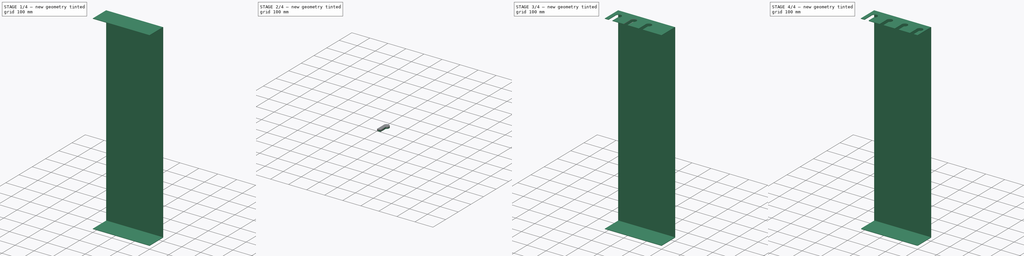
[diagram: build sequence overview — one tinted view per stage of 4, left to right]
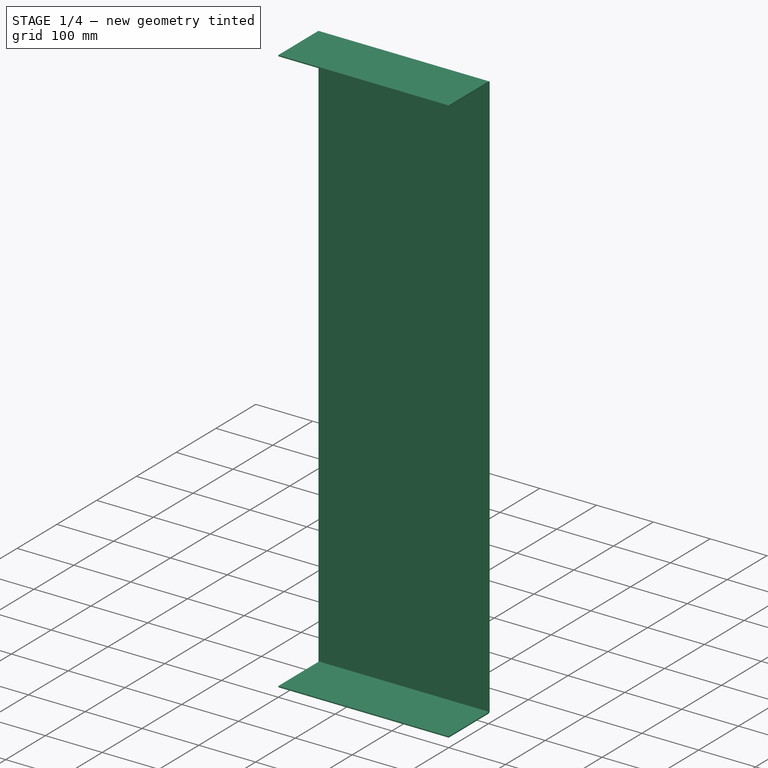
[diagram: stage 1 of 4 — iso view after this stage's code; geometry added in this stage tinted green]
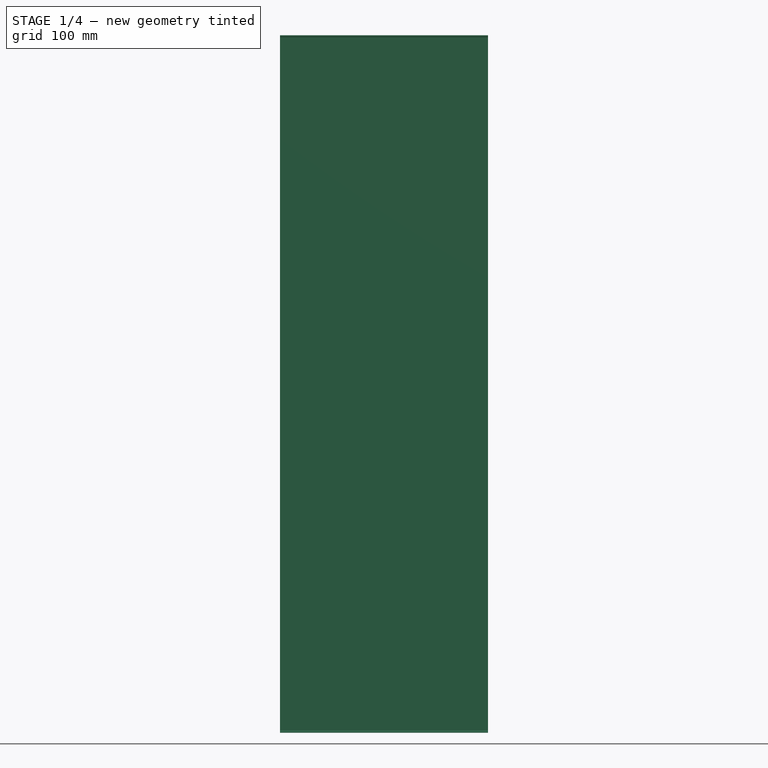
[diagram: stage 1 of 4 — front view after this stage's code; geometry added in this stage tinted green]
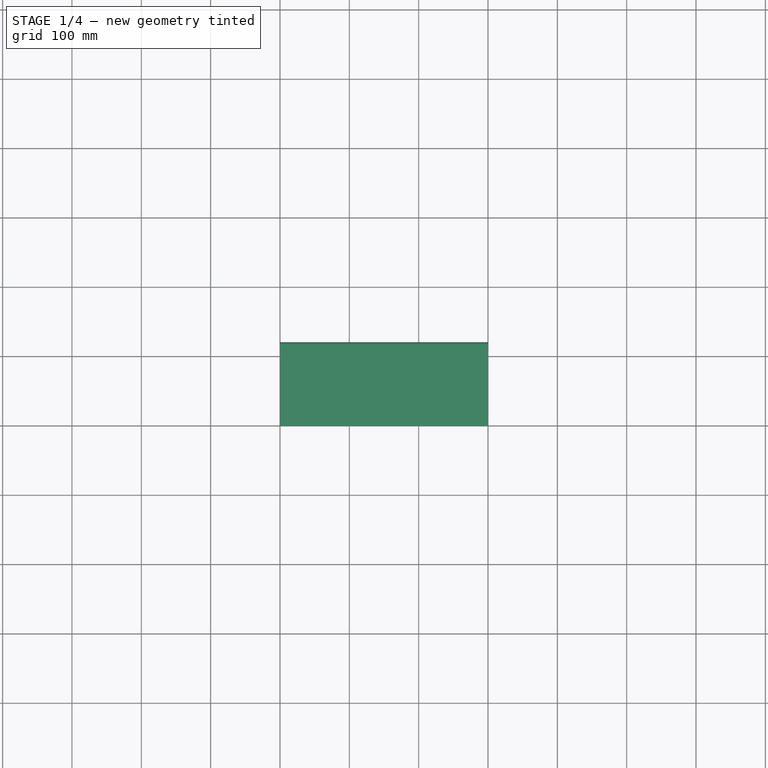
[diagram: stage 1 of 4 — top view after this stage's code; geometry added in this stage tinted green]
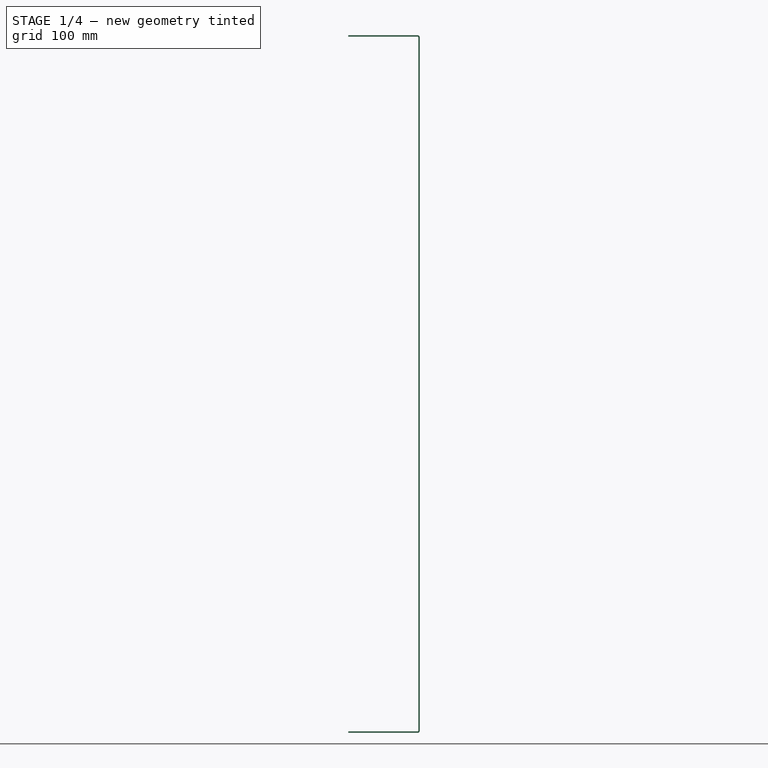
[diagram: stage 1 of 4 — right view after this stage's code; geometry added in this stage tinted green]
FCSTD DOCUMENT  (FreeCAD 0.17R11624 (Git))
Label: insert_stand
License: All rights reserved
LicenseURL: http://en.wikipedia.org/wiki/All_rights_reserved
objects: Sketcher::SketchObject×4, Part::Extrusion×4, Part::Cut×4, Part::FeaturePython×2, Part::Box×1, Part::Fillet×1
note: 16 computed .brp shape members not serialized (recipe doc carries the construction recipe); baked Part::Feature solids carry a one-line shape summary decoded from their .brp

FEATURE [Part::Box] Box  label="Cube"
  AttacherType = Attacher::AttachEngine3D
  Height = 2
  Length = 300
  Width = 100
FEATURE [Part::FeaturePython] Bend  # WARN: FeaturePython — macro-defined, semantics opaque (R4)
  angle = 90
  baseObject = -> Box [Face4]
  gap1 = 0
  gap2 = 0
  invert = false
  length = 1000
  radius = 1
  reliefd = 1
  reliefw = 0.5
FEATURE [Part::FeaturePython] Bend001  # WARN: FeaturePython — macro-defined, semantics opaque (R4)
  angle = 90
  baseObject = -> Bend [Face1]
  gap1 = 0
  gap2 = 0
  invert = false
  length = 100
  radius = 1
  reliefd = 1
  reliefw = 0.5
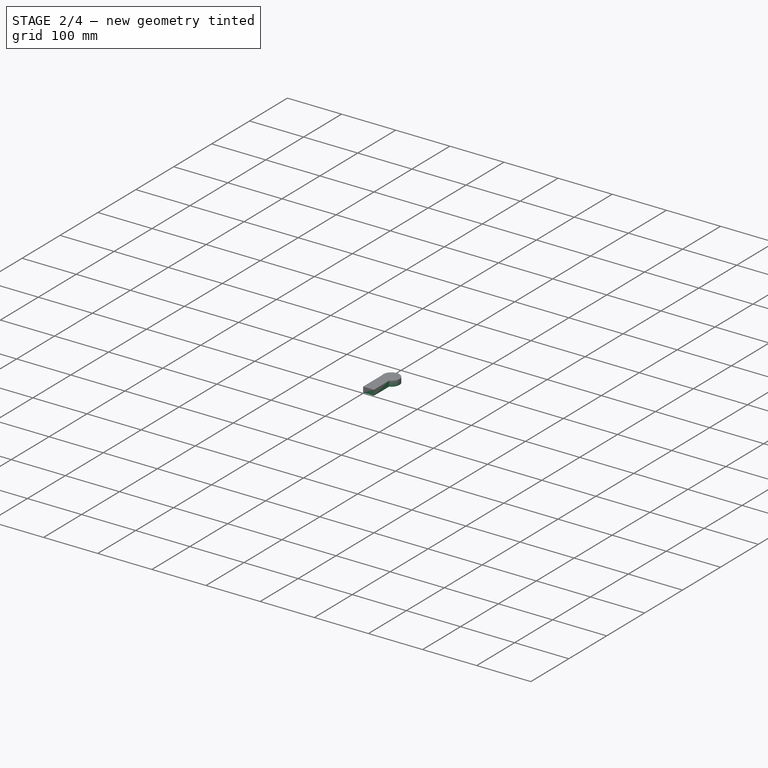
[diagram: stage 2 of 4 — iso view after this stage's code; geometry added in this stage tinted green]
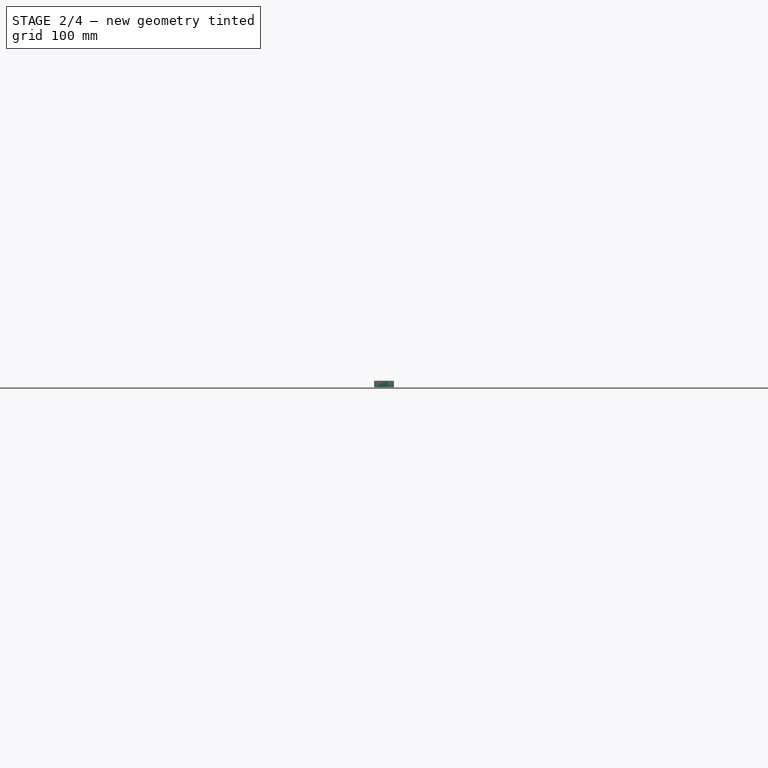
[diagram: stage 2 of 4 — front view after this stage's code; geometry added in this stage tinted green]
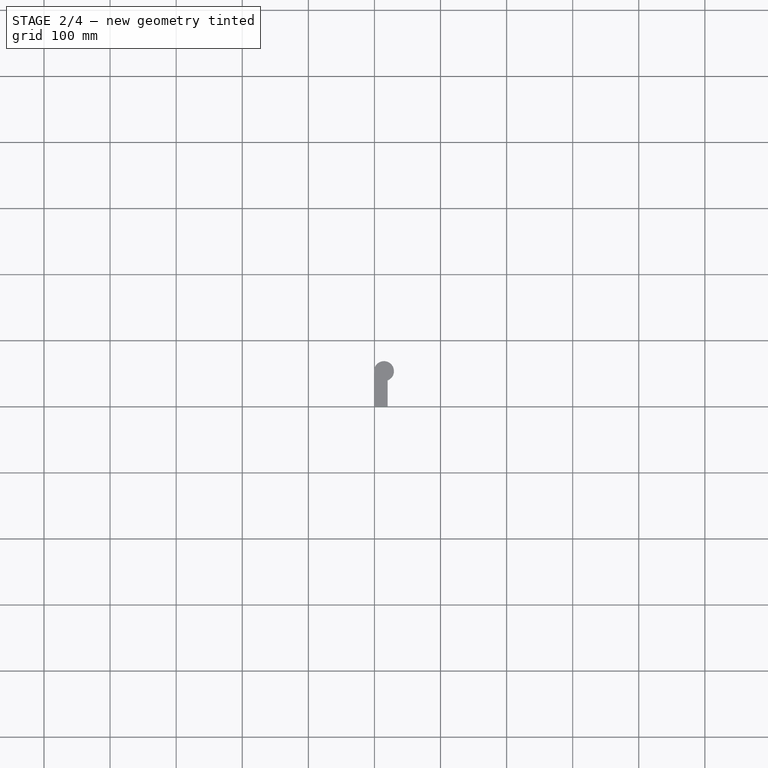
[diagram: stage 2 of 4 — top view after this stage's code; geometry added in this stage tinted green]
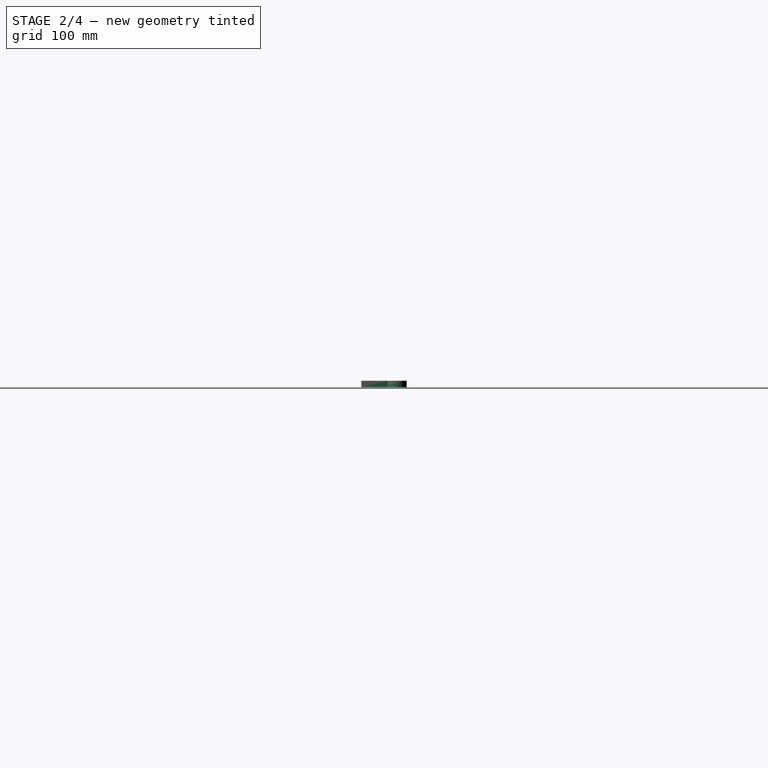
[diagram: stage 2 of 4 — right view after this stage's code; geometry added in this stage tinted green]
FEATURE [Sketcher::SketchObject] Sketch
  MapMode = 5
  Placement = pos=(0,0,1006) rot=(0,0,1;0rad)
  Support = -> [Bend001]
  sketch-geometry (4):
    g0: LineSegment StartX=20 StartY=0 StartZ=0 EndX=20 EndY=50 EndZ=0
    g1: LineSegment StartX=40 StartY=0 StartZ=0 EndX=40 EndY=40 EndZ=0
    g2: ArcOfCircle CenterX=34.4721 CenterY=53.9443 CenterZ=0 NormalX=0 NormalY=0 NormalZ=1 Radius=15 StartAngle=5.08981 EndAngle=9.69086
    g3: LineSegment StartX=20 StartY=0 StartZ=0 EndX=40 EndY=0 EndZ=0
  constraints (13):
    c: Vertical(g0)
    c: Vertical(g1)
    c: DistanceY(g-1,g0) = 0
    c: DistanceX(g-1,g0) = 20
    c: DistanceX(g0,g1) = 20
    c: DistanceY(g0,g0) = 50
    c: DistanceY(g-1,g1) = 0
    c: Coincident(g2,g0)
    c: Coincident(g2,g1)
    c: Radius(g2) = 15
    c: Coincident(g3,g0)
    c: Coincident(g3,g1)
    c: DistanceY(g1,g1) = 40
FEATURE [Part::Extrusion] Extrude001
  Base = -> Sketch
  Dir = (0,0,1)
  DirMode = 2
  FaceMakerClass = Part::FaceMakerBullseye
  LengthFwd = 10
  LengthRev = 0
  Reversed = true
  Solid = true
  Symmetric = false
FEATURE [Part::Cut] Cut
  Base = -> Bend001
  Tool = -> Extrude001
FEATURE [Sketcher::SketchObject] Sketch001
  MapMode = 5
  Placement = pos=(0,0,1006) rot=(0,0,1;0rad)
  Support = -> [Cut]
  sketch-geometry (4):
    g0: LineSegment StartX=100 StartY=0 StartZ=0 EndX=100 EndY=50 EndZ=0
    g1: LineSegment StartX=120 StartY=0 StartZ=0 EndX=120 EndY=40 EndZ=0
    g2: ArcOfCircle CenterX=114.472 CenterY=53.9443 CenterZ=0 NormalX=0 NormalY=0 NormalZ=1 Radius=15 StartAngle=5.08981 EndAngle=9.69086
    g3: LineSegment StartX=100 StartY=0 StartZ=0 EndX=120 EndY=0 EndZ=0
  constraints (13):
    c: Vertical(g0)
    c: Vertical(g1)
    c: DistanceY(g-1,g0) = 0
    c: DistanceY(g-1,g1) = 0
    c: DistanceX(g0,g1) = 20
    c: DistanceX(g-1,g0) = 100
    c: DistanceY(g0,g0) = 50
    c: DistanceY(g1,g1) = 40
    c: Coincident(g2,g0)
    c: Coincident(g2,g1)
    c: Radius(g2) = 15
    c: Coincident(g3,g0)
    c: Coincident(g3,g1)
FEATURE [Part::Extrusion] Extrude
  Base = -> Sketch001
  Dir = (0,0,1)
  DirMode = 2
  FaceMakerClass = Part::FaceMakerBullseye
  LengthFwd = 10
  LengthRev = 0
  Reversed = true
  Solid = true
  Symmetric = false
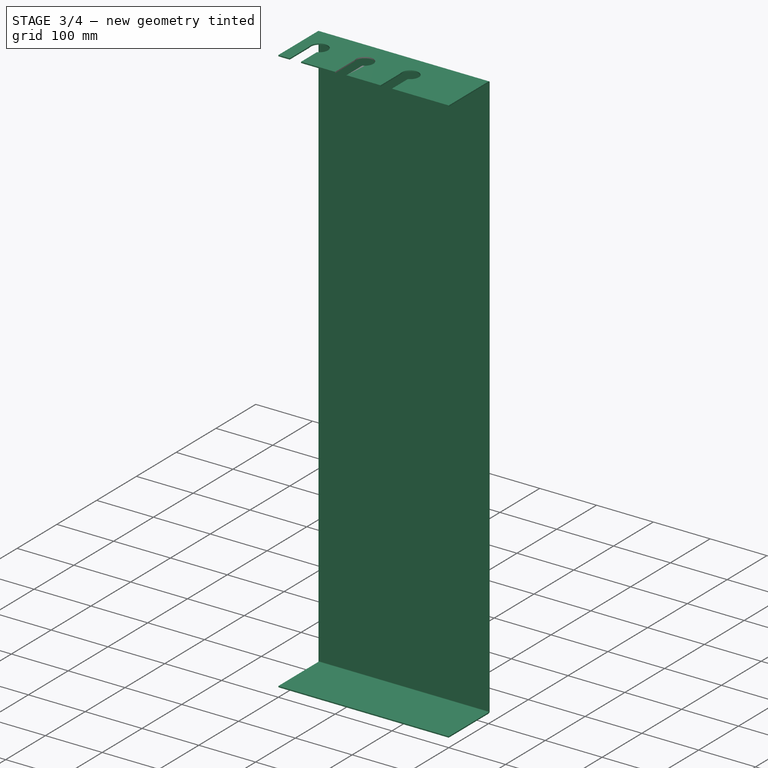
[diagram: stage 3 of 4 — iso view after this stage's code; geometry added in this stage tinted green]
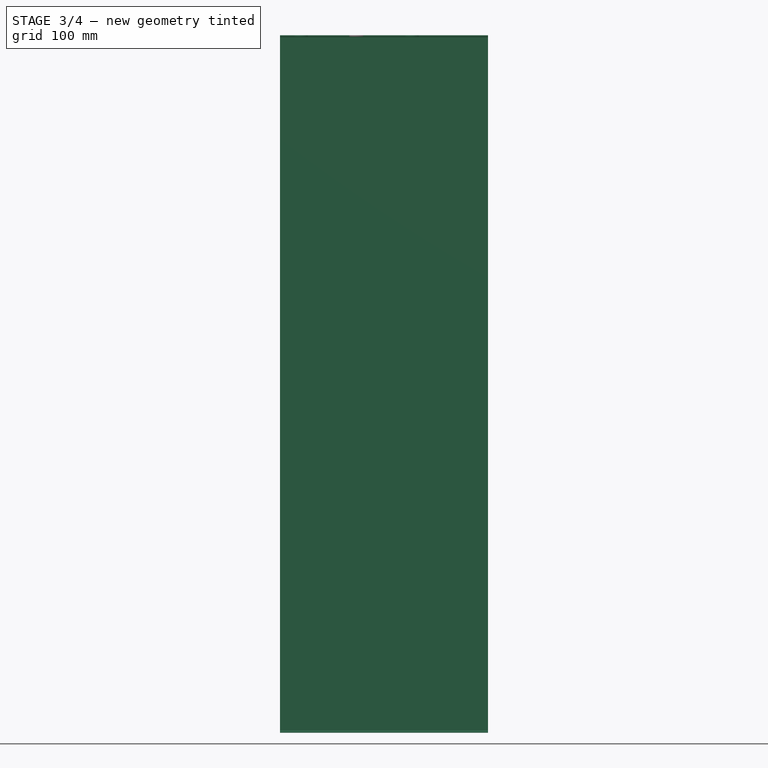
[diagram: stage 3 of 4 — front view after this stage's code; geometry added in this stage tinted green]
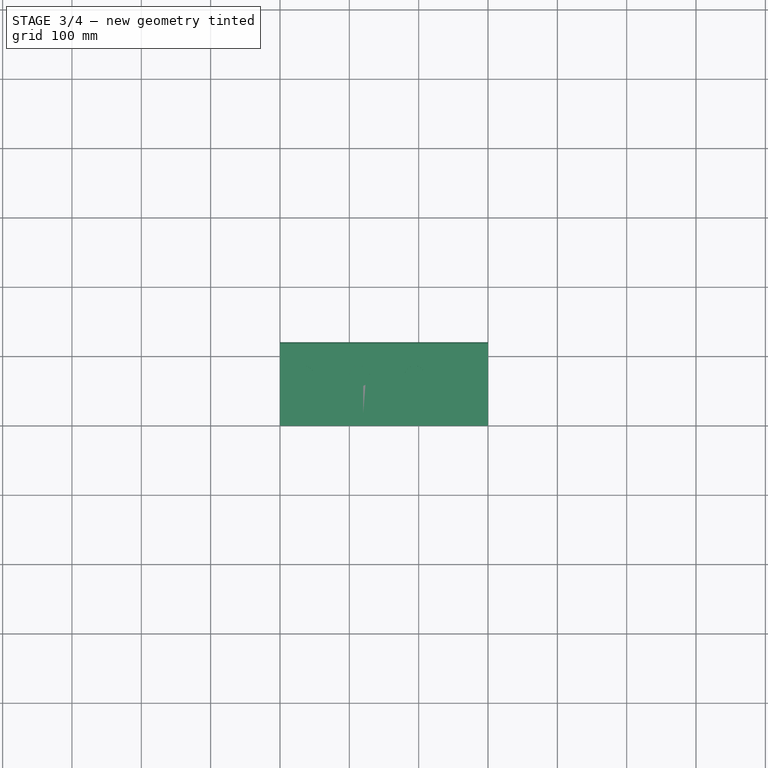
[diagram: stage 3 of 4 — top view after this stage's code; geometry added in this stage tinted green]
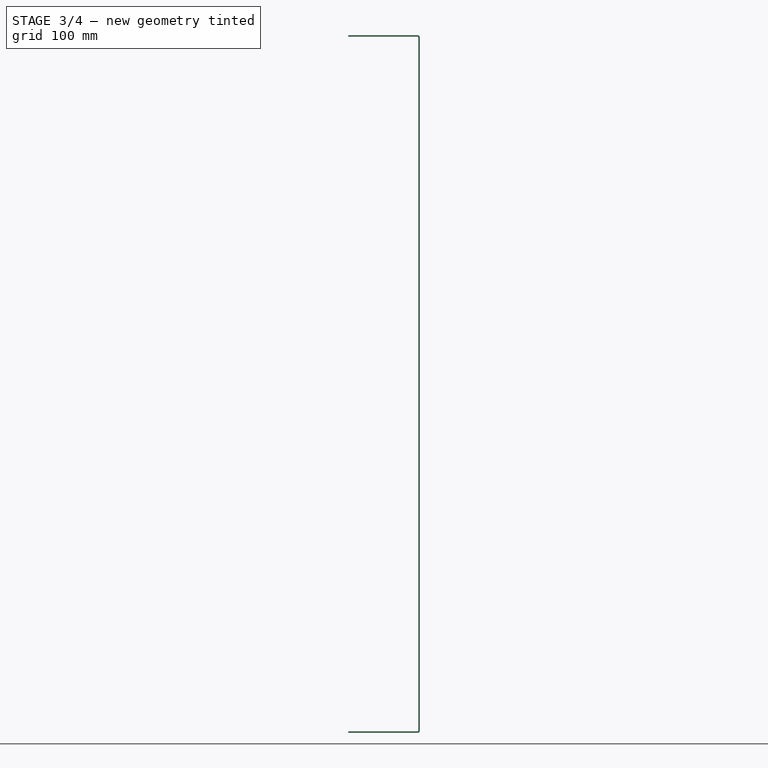
[diagram: stage 3 of 4 — right view after this stage's code; geometry added in this stage tinted green]
FEATURE [Part::Cut] Cut001
  Base = -> Cut
  Tool = -> Extrude
FEATURE [Sketcher::SketchObject] Sketch002
  MapMode = 5
  Placement = pos=(0,0,1006) rot=(0,0,1;0rad)
  Support = -> [Cut001]
  sketch-geometry (4):
    g0: LineSegment StartX=180 StartY=0 StartZ=0 EndX=180 EndY=50 EndZ=0
    g1: LineSegment StartX=200 StartY=0 StartZ=0 EndX=200 EndY=40 EndZ=0
    g2: LineSegment StartX=180 StartY=0 StartZ=0 EndX=200 EndY=0 EndZ=0
    g3: ArcOfCircle CenterX=194.472 CenterY=53.9443 CenterZ=0 NormalX=0 NormalY=0 NormalZ=1 Radius=15 StartAngle=5.08981 EndAngle=9.69086
  constraints (13):
    c: Vertical(g1)
    c: Coincident(g2,g0)
    c: Coincident(g2,g1)
    c: Horizontal(g2)
    c: Vertical(g0)
    c: DistanceY(g0,g-1) = 0
    c: DistanceY(g0,g0) = 50
    c: DistanceY(g1,g1) = 40
    c: Coincident(g3,g0)
    c: Coincident(g3,g1)
    c: Radius(g3) = 15
    c: DistanceX(g-1,g0) = 180
    c: DistanceX(g0,g1) = 20
FEATURE [Part::Extrusion] Extrude002
  Base = -> Sketch002
  Dir = (0,0,1)
  DirMode = 2
  FaceMakerClass = Part::FaceMakerBullseye
  LengthFwd = 10
  LengthRev = 0
  Reversed = true
  Solid = true
  Symmetric = false
FEATURE [Part::Cut] Cut002
  Base = -> Cut001
  Tool = -> Extrude002
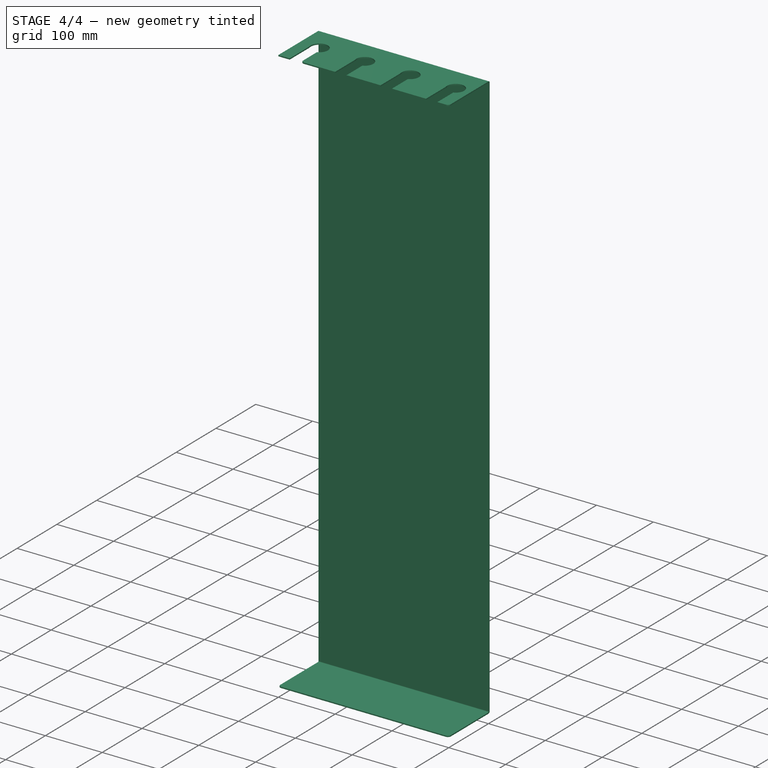
[diagram: stage 4 of 4 — iso view after this stage's code; geometry added in this stage tinted green]
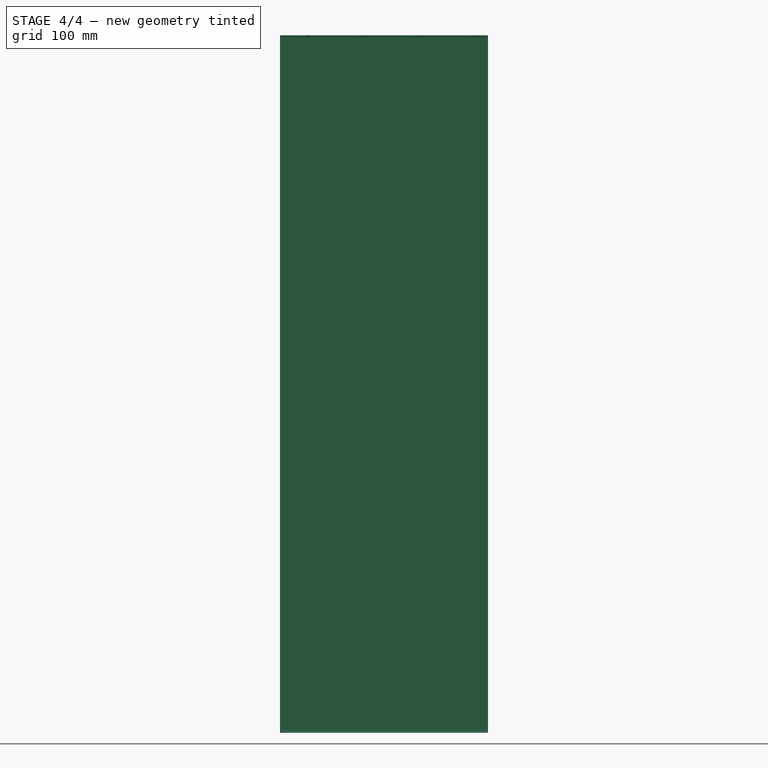
[diagram: stage 4 of 4 — front view after this stage's code; geometry added in this stage tinted green]
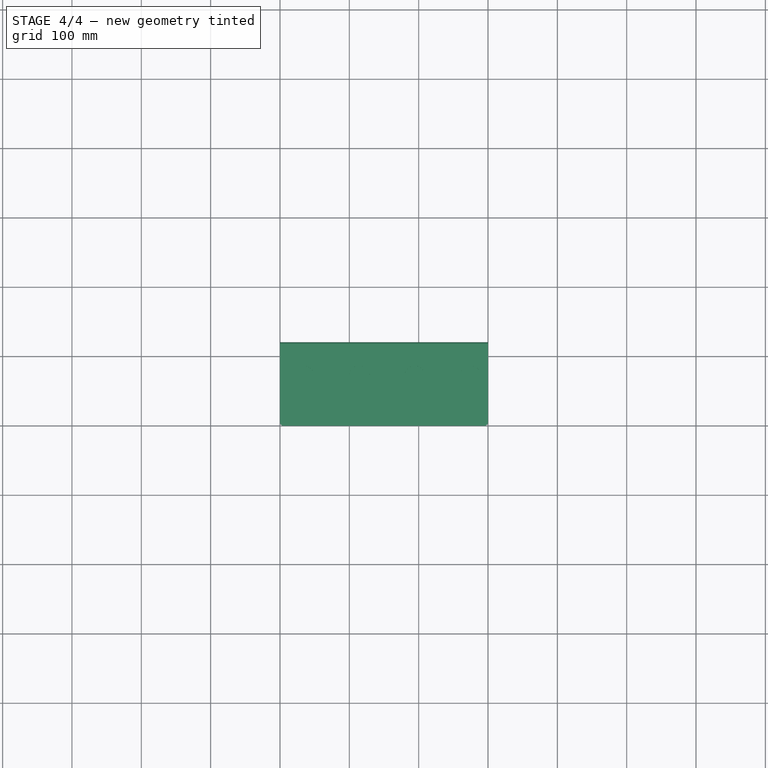
[diagram: stage 4 of 4 — top view after this stage's code; geometry added in this stage tinted green]
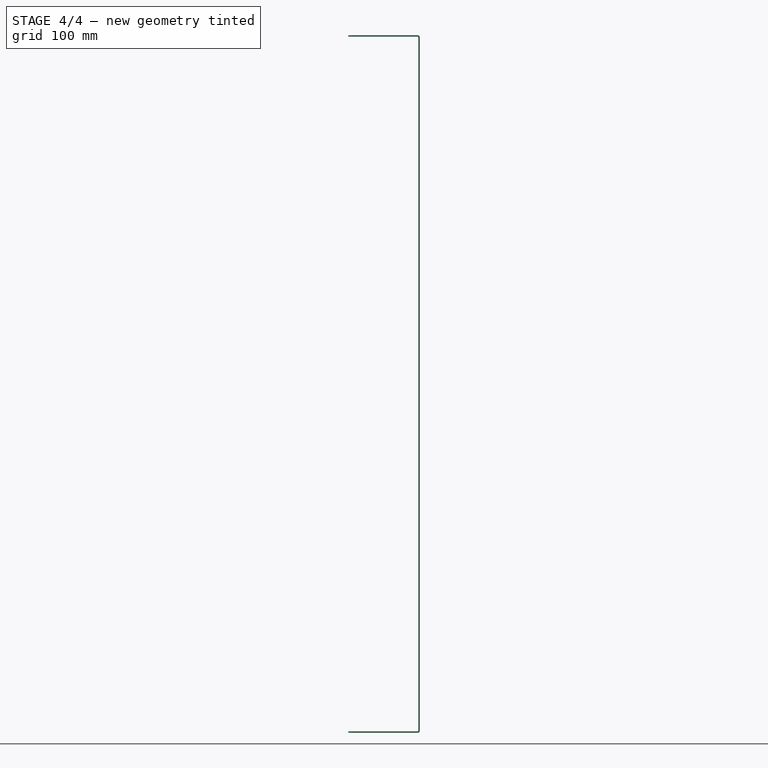
[diagram: stage 4 of 4 — right view after this stage's code; geometry added in this stage tinted green]
FEATURE [Sketcher::SketchObject] Sketch003
  MapMode = 5
  Placement = pos=(0,0,1006) rot=(0,0,1;0rad)
  Support = -> [Cut002]
  sketch-geometry (4):
    g0: LineSegment StartX=260 StartY=0 StartZ=0 EndX=260 EndY=50 EndZ=0
    g1: LineSegment StartX=280 StartY=0 StartZ=0 EndX=280 EndY=40 EndZ=0
    g2: LineSegment StartX=260 StartY=0 StartZ=0 EndX=280 EndY=0 EndZ=0
    g3: ArcOfCircle CenterX=274.472 CenterY=53.9443 CenterZ=0 NormalX=0 NormalY=0 NormalZ=1 Radius=15 StartAngle=5.08981 EndAngle=9.69086
  constraints (13):
    c: Vertical(g0)
    c: Vertical(g1)
    c: Coincident(g2,g0)
    c: Coincident(g2,g1)
    c: Horizontal(g2)
    c: DistanceY(g-1,g0) = 0
    c: DistanceX(g-1,g0) = 260
    c: DistanceX(g0,g1) = 20
    c: DistanceY(g0,g0) = 50
    c: DistanceY(g1,g1) = 40
    c: Coincident(g3,g0)
    c: Coincident(g3,g1)
    c: Radius(g3) = 15
FEATURE [Part::Extrusion] Extrude003
  Base = -> Sketch003
  Dir = (0,0,1)
  DirMode = 2
  FaceMakerClass = Part::FaceMakerBullseye
  LengthFwd = 10
  LengthRev = 0
  Reversed = true
  Solid = true
  Symmetric = false
FEATURE [Part::Cut] Cut003
  Base = -> Cut002
  Tool = -> Extrude003
FEATURE [Part::Fillet] Fillet
  Base = -> Cut003
  Edges = 4 edges r=5: [Edge46,Edge59,Edge91,Edge92]
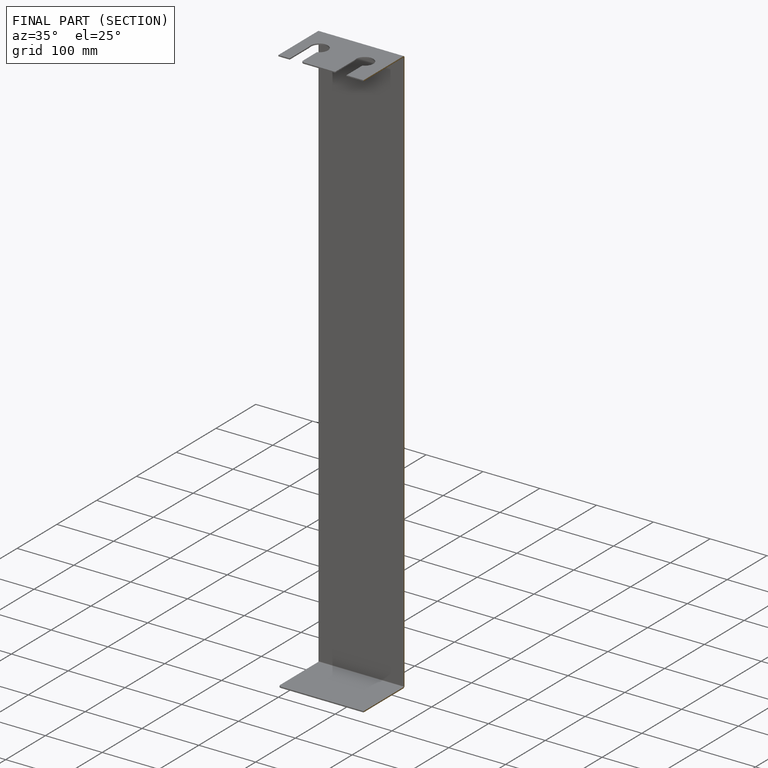
[diagram: finished part — half-section view (interior)]
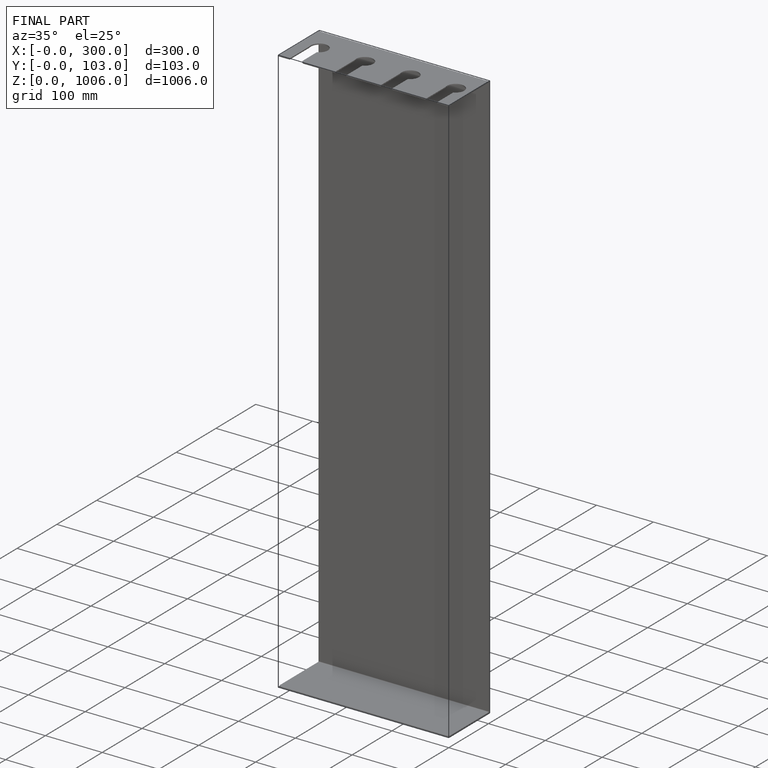
[diagram: finished part — iso view with bounding-box wireframe]
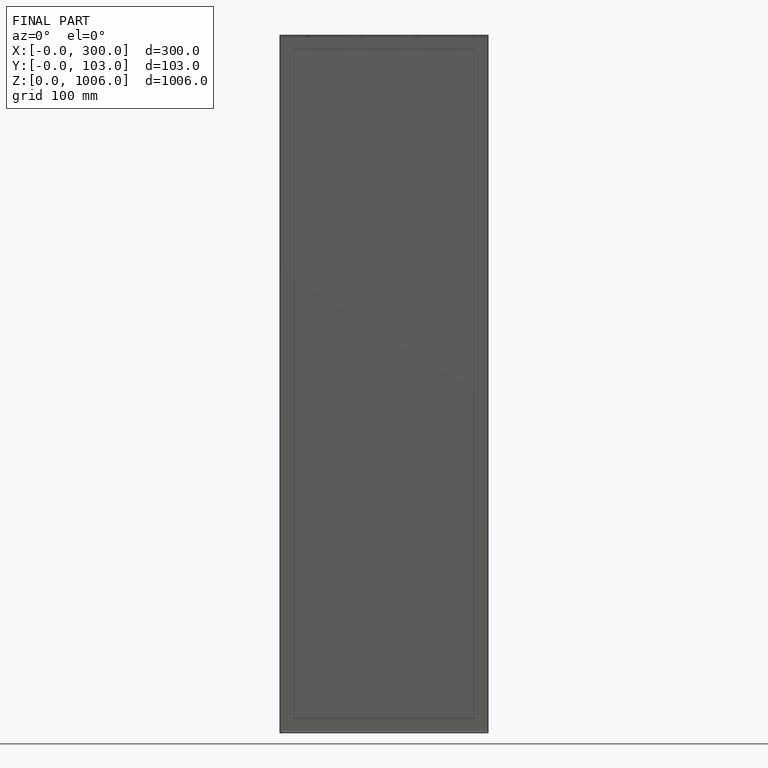
[diagram: finished part — front view with bounding-box wireframe]
